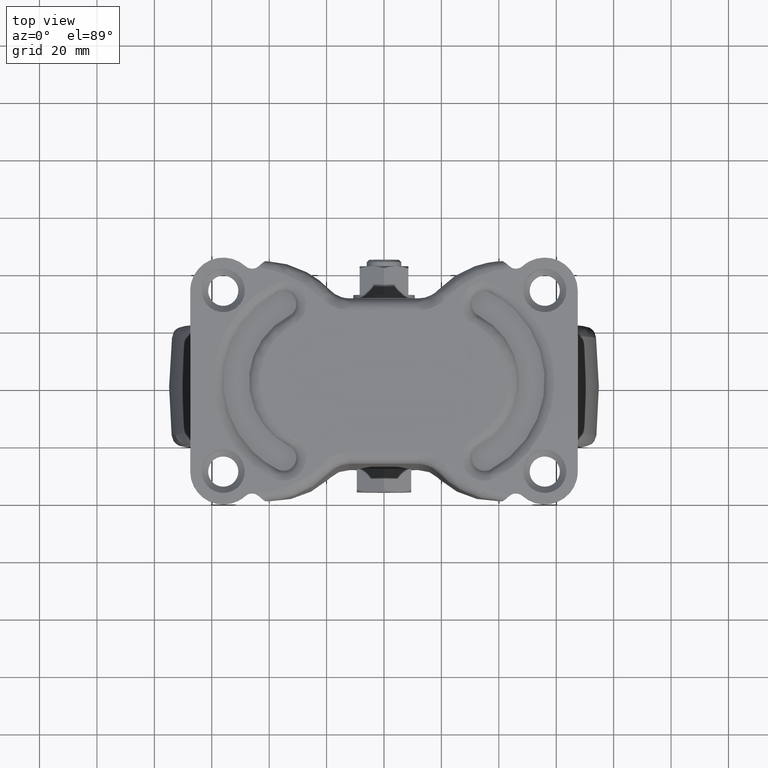
[diagram: clean part render]
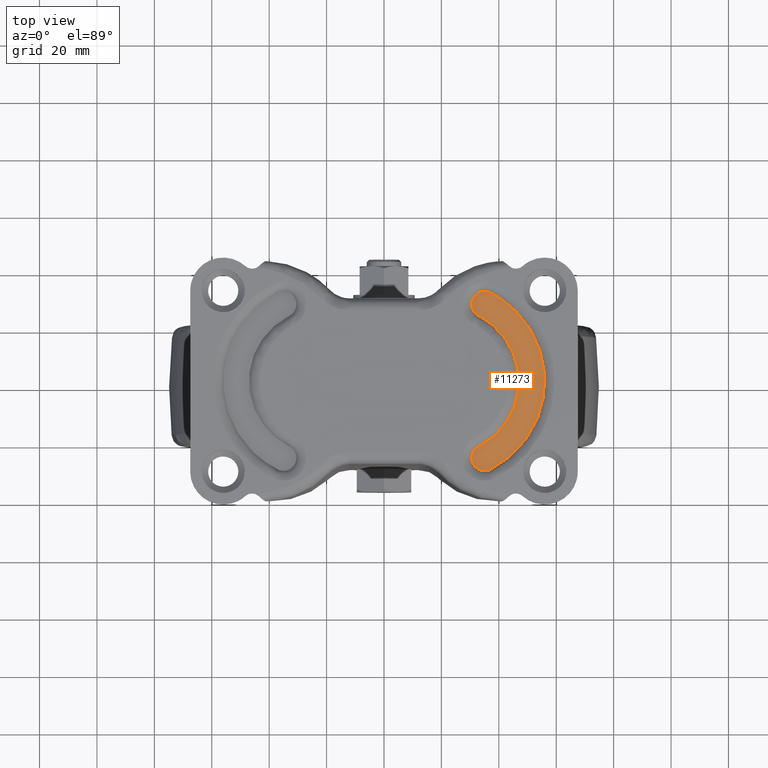
[diagram: same view with one face highlighted and labeled with its STEP entity id]
A machine part, top view. The second image highlights one B-rep face of the part: STEP entity #11273.
In plain terms, the highlighted face is a freeform B-spline surface patch.
Its self-contained STEP definition (entity closure, byte-faithful):
#11181=CARTESIAN_POINT('',(29.258228773032229,34.397002261345762,-2.300000000000000));
#11182=CARTESIAN_POINT('',(57.272205477243823,34.397002261345762,-2.300000000000000));
#11183=CARTESIAN_POINT('',(29.258228773032229,-34.397000586055682,-2.300000000000000));
#11184=CARTESIAN_POINT('',(57.272205477243823,-34.397000586055682,-2.300000000000000));
#11185=B_SPLINE_SURFACE_WITH_KNOTS('',1,1,((#11181,#11183),(#11182,#11184)),.UNSPECIFIED.,.F.,.F.,.U.,(2,2),(2,2),(0.0,28.013976704211579),(0.0,68.794002847401430),.UNSPECIFIED.);
#11186=CARTESIAN_POINT('',(32.996311444329947,-22.761476735373900,-2.299999999999970));
#11187=VERTEX_POINT('',#11186);
#11188=CARTESIAN_POINT('',(37.053833130564051,-30.794939112564698,-2.299999999999970));
#11189=VERTEX_POINT('',#11188);
#11190=CARTESIAN_POINT('',(32.996311444329947,-22.761476735373900,-2.299999999999970));
#11191=CARTESIAN_POINT('',(32.470123937545019,-23.026511806172930,-2.299999999999972));
#11192=CARTESIAN_POINT('',(31.791118894799340,-23.559192078333702,-2.299999999999968));
#11193=CARTESIAN_POINT('',(31.099873100087230,-24.518626782936540,-2.299999999999971));
#11194=CARTESIAN_POINT('',(30.684505058686209,-25.428367239692680,-2.299999999999973));
#11195=CARTESIAN_POINT('',(30.495537538446719,-26.451299844523309,-2.299999999999971));
#11196=CARTESIAN_POINT('',(30.542281363616770,-27.374951787112661,-2.299999999999967));
#11197=CARTESIAN_POINT('',(30.729456021850918,-28.203141809296891,-2.299999999999972));
#11198=CARTESIAN_POINT('',(31.139149046194859,-29.156038806471841,-2.299999999999971));
#11199=CARTESIAN_POINT('',(31.839337142265862,-30.028253268911591,-2.299999999999970));
#11200=CARTESIAN_POINT('',(32.820933159090430,-30.754124630655831,-2.299999999999972));
#11201=CARTESIAN_POINT('',(33.921778405327522,-31.208534257177369,-2.299999999999970));
#11202=CARTESIAN_POINT('',(35.144220844312201,-31.327086286894708,-2.299999999999970));
#11203=CARTESIAN_POINT('',(36.204527212117419,-31.154846059513119,-2.299999999999971));
#11204=CARTESIAN_POINT('',(36.790967709419753,-30.927742586652769,-2.299999999999970));
#11205=CARTESIAN_POINT('',(37.053833130564051,-30.794939112564698,-2.299999999999970));
#11206=B_SPLINE_CURVE_WITH_KNOTS('',3,(#11190,#11191,#11192,#11193,#11194,#11195,#11196,#11197,#11198,#11199,#11200,#11201,#11202,#11203,#11204,#11205),.UNSPECIFIED.,.F.,.U.,(4,1,1,1,1,1,1,1,1,1,1,1,1,4),(0.000000240546173,1.767165921468600,2.540342040490868,3.534392833953406,4.749244039199365,5.632879695842462,6.295595656704408,7.289675614464213,8.725552547848658,9.609016117196555,10.934484091273140,12.259886230746220,13.253984549097890,14.137522261725440),.UNSPECIFIED.);
#11207=EDGE_CURVE('',#11187,#11189,#11206,.T.);
#11208=ORIENTED_EDGE('',*,*,#11207,.T.);
#11209=CARTESIAN_POINT('',(37.053832804174498,30.794939208264349,-2.299999999999970));
#11210=VERTEX_POINT('',#11209);
#11211=CARTESIAN_POINT('',(37.053833130564051,-30.794939112564698,-2.299999999999970));
#11212=CARTESIAN_POINT('',(38.823145400473621,-29.901463204106090,-2.299999999999974));
#11213=CARTESIAN_POINT('',(42.037891471108068,-27.913022439419279,-2.299999999999968));
#11214=CARTESIAN_POINT('',(45.782316802960970,-24.644615822224988,-2.299999999999969));
#11215=CARTESIAN_POINT('',(49.002997530646468,-21.001327917714800,-2.299999999999974));
#11216=CARTESIAN_POINT('',(51.383121411644773,-17.449144530352431,-2.299999999999971));
#11217=CARTESIAN_POINT('',(53.308779392022842,-13.530156580915310,-2.299999999999963));
#11218=CARTESIAN_POINT('',(54.802517641171427,-9.426011974266389,-2.299999999999988));
#11219=CARTESIAN_POINT('',(55.823709254104877,-4.661753389996498,-2.299999999999938));
#11220=CARTESIAN_POINT('',(56.096187829743108,0.199838077557225,-2.300000000000013));
#11221=CARTESIAN_POINT('',(55.733069480383037,5.149634848464506,-2.299999999999948));
#11222=CARTESIAN_POINT('',(54.733551844817157,9.716834753064520,-2.299999999999980));
#11223=CARTESIAN_POINT('',(52.764743162505113,14.916721694887700,-2.299999999999964));
#11224=CARTESIAN_POINT('',(50.205777681865897,19.416707380992371,-2.299999999999972));
#11225=CARTESIAN_POINT('',(46.954044873531927,23.430673416132048,-2.299999999999970));
#11226=CARTESIAN_POINT('',(42.854830277992320,27.332567021110080,-2.299999999999971));
#11227=CARTESIAN_POINT('',(39.442672168110157,29.589089266307550,-2.299999999999971));
#11228=CARTESIAN_POINT('',(37.053832804174498,30.794939208264349,-2.299999999999970));
#11229=B_SPLINE_CURVE_WITH_KNOTS('',3,(#11211,#11212,#11213,#11214,#11215,#11216,#11217,#11218,#11219,#11220,#11221,#11222,#11223,#11224,#11225,#11226,#11227,#11228),.UNSPECIFIED.,.F.,.U.,(4,1,1,1,1,1,1,1,1,1,1,1,1,1,1,4),(0.000000045260109,5.946323192222963,11.298094426729209,14.865972477227100,20.515052966615169,24.082905376433992,27.948063361344190,33.597106832977147,38.651486863400969,42.516637111125362,48.463030432209578,52.625543569188878,59.166587159672460,63.923728635300783,68.086162262851218,76.113784960197023),.UNSPECIFIED.);
#11230=EDGE_CURVE('',#11189,#11210,#11229,.T.);
#11231=ORIENTED_EDGE('',*,*,#11230,.T.);
#11232=CARTESIAN_POINT('',(32.996311223654203,22.761476846832299,-2.299999999999970));
#11233=VERTEX_POINT('',#11232);
#11234=CARTESIAN_POINT('',(37.053832804174498,30.794939208264349,-2.299999999999970));
#11235=CARTESIAN_POINT('',(36.528245465964901,31.061128415000020,-2.299999999999972));
#11236=CARTESIAN_POINT('',(35.588004001532340,31.321579908431609,-2.299999999999968));
#11237=CARTESIAN_POINT('',(34.328213909577322,31.261258087578192,-2.299999999999971));
#11238=CARTESIAN_POINT('',(33.365235084385318,30.996171647154888,-2.299999999999981));
#11239=CARTESIAN_POINT('',(32.542742942087301,30.570820589597300,-2.299999999999946));
#11240=CARTESIAN_POINT('',(31.654943010936019,29.844739168920579,-2.299999999999991));
#11241=CARTESIAN_POINT('',(30.986861747989000,28.898742874854371,-2.299999999999966));
#11242=CARTESIAN_POINT('',(30.599925970787631,27.778234925115100,-2.299999999999963));
#11243=CARTESIAN_POINT('',(30.492525809973412,26.821256388605700,-2.299999999999982));
#11244=CARTESIAN_POINT('',(30.603017670153541,25.679704650284101,-2.299999999999970));
#11245=CARTESIAN_POINT('',(31.045177048485058,24.528871004325620,-2.299999999999947));
#11246=CARTESIAN_POINT('',(31.902930240441560,23.454560309143641,-2.300000000000012));
#11247=CARTESIAN_POINT('',(32.601877551013473,22.960481564131079,-2.299999999999954));
#11248=CARTESIAN_POINT('',(32.996311223654203,22.761476846832299,-2.299999999999970));
#11249=B_SPLINE_CURVE_WITH_KNOTS('',3,(#11234,#11235,#11236,#11237,#11238,#11239,#11240,#11241,#11242,#11243,#11244,#11245,#11246,#11247,#11248),.UNSPECIFIED.,.F.,.U.,(4,1,1,1,1,1,1,1,1,1,1,1,4),(0.000000176688726,1.767165795607555,2.871710879316025,3.755313112991294,4.749243808737939,5.632879434340842,7.179220929839730,8.173260654881386,9.167373864716650,10.050822783819431,11.597178700490140,12.812174410948391,14.137521700346980),.UNSPECIFIED.);
#11250=EDGE_CURVE('',#11210,#11233,#11249,.T.);
#11251=ORIENTED_EDGE('',*,*,#11250,.T.);
#11252=CARTESIAN_POINT('',(32.996311444329947,-22.761476735373900,-2.299999999999970));
#11253=CARTESIAN_POINT('',(34.761972164607712,-21.870227774744318,-2.299999999999968));
#11254=CARTESIAN_POINT('',(37.160934524797852,-20.283684089829539,-2.299999999999971));
#11255=CARTESIAN_POINT('',(40.160544714363951,-17.477431315508760,-2.299999999999970));
#11256=CARTESIAN_POINT('',(42.274005576800647,-14.936203854317240,-2.299999999999969));
#11257=CARTESIAN_POINT('',(44.274792834685918,-11.684186745177810,-2.299999999999955));
#11258=CARTESIAN_POINT('',(45.765683603577358,-8.165067335665246,-2.300000000000023));
#11259=CARTESIAN_POINT('',(46.855325719418907,-3.819128211593591,-2.299999999999933));
#11260=CARTESIAN_POINT('',(47.140787651344219,0.592264765214411,-2.299999999999998));
#11261=CARTESIAN_POINT('',(46.574718807222162,5.260395541255649,-2.299999999999943));
#11262=CARTESIAN_POINT('',(45.464808330934183,8.997313954977104,-2.300000000000000));
#11263=CARTESIAN_POINT('',(43.591385198711848,12.982120451440091,-2.299999999999995));
#11264=CARTESIAN_POINT('',(41.067805649403070,16.611698636187700,-2.300000000000012));
#11265=CARTESIAN_POINT('',(37.353489156035941,20.177303183730171,-2.299999999999870));
#11266=CARTESIAN_POINT('',(34.565684487079992,21.969102330606219,-2.300000000000012));
#11267=CARTESIAN_POINT('',(32.996311223654203,22.761476846832299,-2.299999999999970));
#11268=B_SPLINE_CURVE_WITH_KNOTS('',3,(#11252,#11253,#11254,#11255,#11256,#11257,#11258,#11259,#11260,#11261,#11262,#11263,#11264,#11265,#11266,#11267),.UNSPECIFIED.,.F.,.U.,(4,1,1,1,1,1,1,1,1,1,1,1,1,4),(0.000000192215090,5.933396162064000,8.570514290505074,12.306428958425780,15.822583815791450,19.997982971804550,23.733869079648830,29.227795823884261,33.183416474262728,37.798349258581077,40.874955199077853,46.368945190706327,50.983869806054493,56.258014970684997),.UNSPECIFIED.);
#11269=EDGE_CURVE('',#11187,#11233,#11268,.T.);
#11270=ORIENTED_EDGE('',*,*,#11269,.F.);
#11271=EDGE_LOOP('',(#11208,#11231,#11251,#11270));
#11272=FACE_OUTER_BOUND('',#11271,.T.);
#11273=ADVANCED_FACE('',(#11272),#11185,.F.);